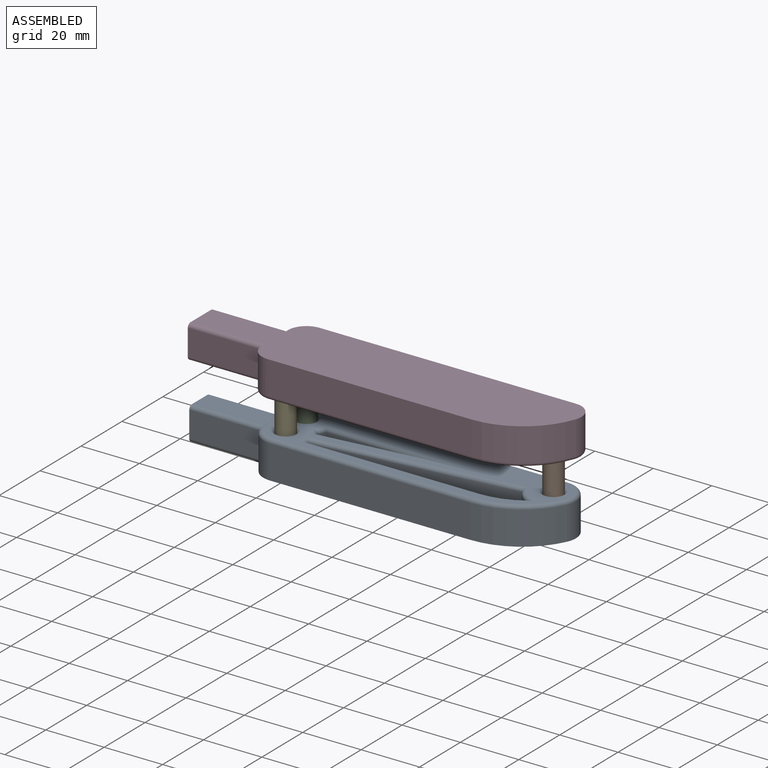
[diagram: assembled view]
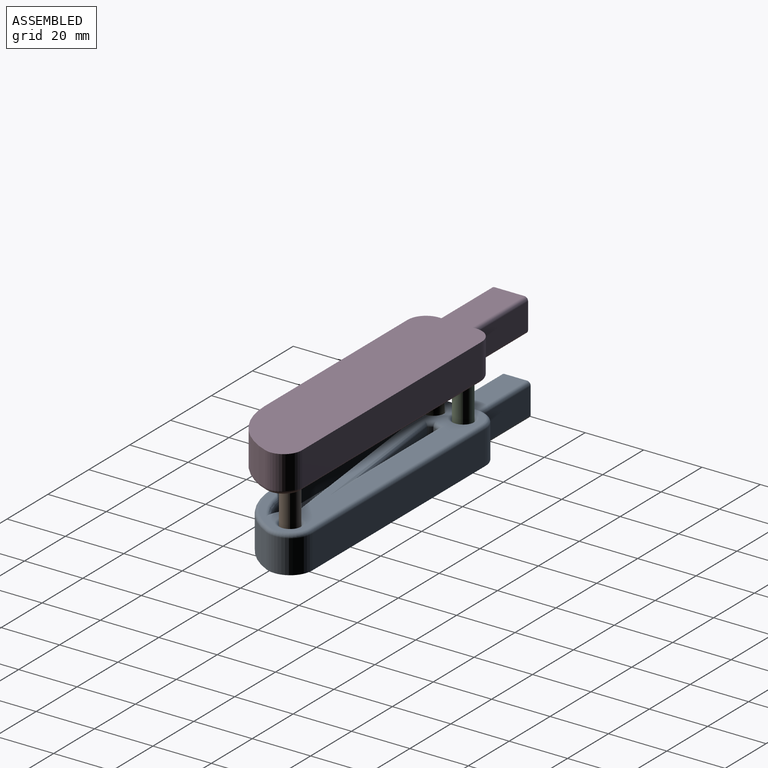
[diagram: assembled view, second angle]
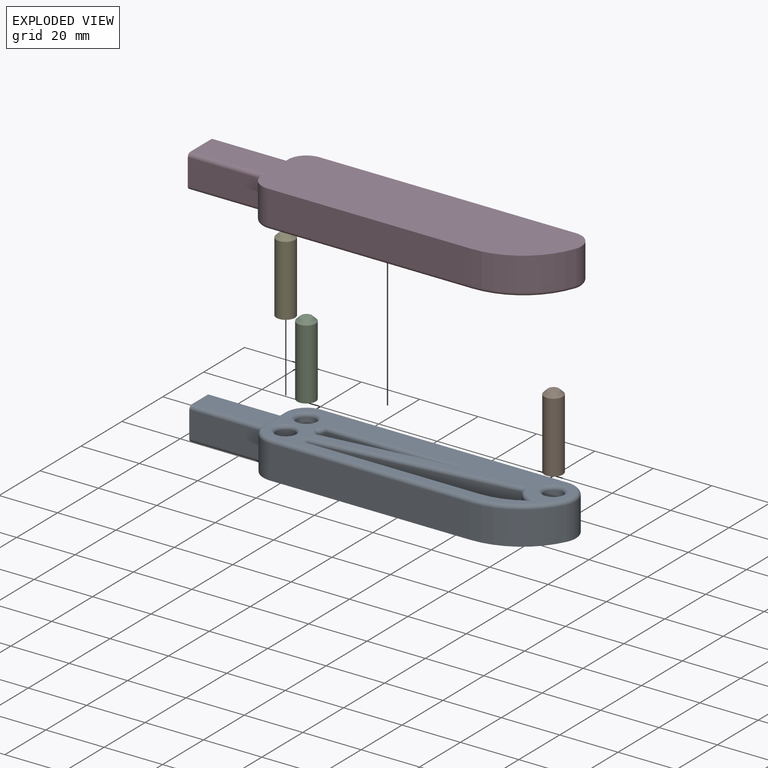
[diagram: exploded view]
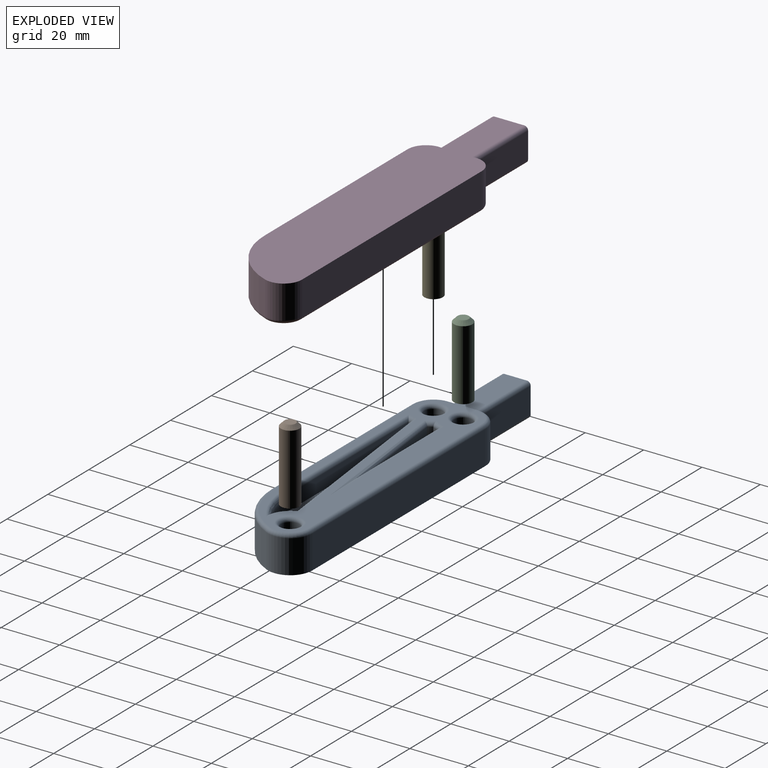
[diagram: exploded view, second angle]
ASSEMBLY  parts=5 mates=4
PART A: 52 faces, bbox 126.4x28.1x12.7 mm
  f0: plane 97.34x22.86mm, normal (0,0,1), area 1163.9mm2, adj f14,f15,f16,f28,f29,f30,f31,f32
  f1: cylinder r=7.62mm len=11.43mm, axis (0,0,-1), area 137.4mm2, adj f2,f7,f30,f32,f44,f48,f51
  f2: plane 68.58x11.43mm, normal (0,-1,0), area 783.9mm2, adj f1,f3,f7,f34
  f3: cylinder r=25.4mm len=22.95mm, axis (0,0,-1), area 327.4mm2, adj f2,f4,f7,f33
  f4: cylinder r=7.62mm len=11.43mm, axis (0,0,-1), area 175.4mm2, adj f3,f5,f7,f31
  f5: plane 84.64x11.43mm, normal (0,1,0), area 967.5mm2, adj f4,f6,f7,f29
  f6: cylinder r=7.62mm len=11.43mm, axis (0,0,-1), area 137.4mm2, adj f5,f7,f28,f30,f46,f49,f50
  f7: plane 125.28x25.4mm, normal (0,0,-1), area 2587.5mm2, adj f1,f2,f3,f4,f5,f6,f47,f50
  f8: cylinder r=3.17mm len=6.35mm, axis (0,0,1), area 101.3mm2, adj f9,f16
  f9: plane 6.35x6.35mm, normal (0,0,1), area 31.7mm2, adj f8
  f10: cylinder r=3.17mm len=6.35mm, axis (0,0,1), area 101.3mm2, adj f11,f15
  f11: plane 6.35x6.35mm, normal (0,0,1), area 31.7mm2, adj f10
  f12: cylinder r=3.17mm len=6.35mm, axis (0,0,1), area 101.3mm2, adj f13,f14
  f13: plane 6.35x6.35mm, normal (0,0,1), area 31.7mm2, adj f12
  f14: torus R=4.45mm, axis (0,0,1), area 45.6mm2, adj f0,f12
  f15: torus R=4.45mm, axis (0,0,1), area 45.6mm2, adj f0,f10
  f16: torus R=4.45mm, axis (0,0,1), area 45.6mm2, adj f0,f8
  f17: cylinder r=8.89mm len=5.08mm, axis (0,0,1), area 9mm2, adj f18,f20,f21,f41
  f18: plane 34.01x5.08mm, normal (-0.12,0.99,0), area 174mm2, adj f17,f19,f21,f43
  f19: plane 33.65x5.08mm, normal (0,-1,0), area 170.9mm2, adj f18,f20,f21,f42
  f20: cylinder r=8.89mm len=5.08mm, axis (0,0,1), area 14.4mm2, adj f17,f19,f21,f40
  f21: plane 34.87x4.08mm, normal (0,0,1), area 70.5mm2, adj f17,f18,f19,f20
  f22: cylinder r=8.89mm len=5.08mm, axis (0,0,1), area 5.5mm2, adj f23,f26,f27,f35
  f23: plane 60.06x5.08mm, normal (0,1,0), area 305.1mm2, adj f22,f24,f27,f36
  f24: cylinder r=24.13mm len=13.56mm, axis (0,0,1), area 73.1mm2, adj f23,f25,f27,f38
  f25: cylinder r=8.89mm len=5.66mm, axis (0,0,1), area 39.7mm2, adj f24,f26,f27,f39
  f26: plane 67.72x8.13mm, normal (0.12,-0.99,0), area 346.5mm2, adj f22,f25,f27,f37
  f27: plane 73.62x9.18mm, normal (0,0,1), area 361.9mm2, adj f22,f23,f24,f25,f26
  f28: torus R=6.35mm, axis (0,0,1), area 22.4mm2, adj f0,f6,f29,f30
  f29: cylinder r=1.27mm len=84.64mm, axis (1,0,0), area 168.9mm2, adj f0,f5,f28,f31
  f30: cylinder r=1.27mm len=10.16mm, axis (0,1,0), area 20.5mm2, adj f0,f1,f6,f28,f32,f45,f48,f49
  f31: torus R=6.35mm, axis (0,0,1), area 28.8mm2, adj f0,f4,f29,f33
  f32: torus R=6.35mm, axis (0,0,1), area 22.4mm2, adj f0,f1,f30,f34
  f33: torus R=24.13mm, axis (0,0,1), area 56.1mm2, adj f0,f3,f31,f34
  f34: cylinder r=1.27mm len=68.58mm, axis (-1,0,0), area 136.8mm2, adj f0,f2,f32,f33
  f35: torus R=7.62mm, axis (0,0,1), area 4mm2, adj f0,f22,f36,f37
  f36: cylinder r=1.27mm len=61.98mm, axis (-1,0,0), area 121.1mm2, adj f0,f23,f35,f38
  f37: cylinder r=1.27mm len=69.87mm, axis (0.99,0.12,0), area 137.5mm2, adj f0,f26,f35,f39
  f38: torus R=25.4mm, axis (0,0,1), area 31.5mm2, adj f0,f24,f36,f39
  f39: torus R=7.62mm, axis (0,0,1), area 17.5mm2, adj f0,f25,f37,f38
  f40: torus R=7.62mm, axis (0,0,1), area 6.7mm2, adj f0,f20,f41,f42
  f41: torus R=7.62mm, axis (0,0,1), area 4.7mm2, adj f0,f17,f40,f43
  f42: cylinder r=1.27mm len=55.89mm, axis (1,0,0), area 83.2mm2, adj f0,f19,f40,f43
  f43: cylinder r=1.27mm len=56.25mm, axis (-0.99,-0.12,0), area 84.4mm2, adj f0,f18,f41,f42
  f44: plane 25.4x8.89mm, normal (0,-1,0), area 225.8mm2, adj f1,f47,f48,f51
  f45: plane 25.4x7.62mm, normal (0,0,1), area 193.5mm2, adj f30,f47,f48,f49
  f46: plane 25.4x8.89mm, normal (0,1,0), area 225.8mm2, adj f6,f47,f49,f50
  f47: plane 11.43x10.16mm, normal (-1,0,0), area 114.7mm2, adj f7,f44,f45,f46,f48,f49,f50,f51
  f48: cylinder r=1.27mm len=25.42mm, axis (-1,0,0), area 50.7mm2, adj f1,f30,f44,f45,f47
  f49: cylinder r=1.27mm len=25.42mm, axis (1,0,0), area 50.7mm2, adj f6,f30,f45,f46,f47
  f50: cylinder r=1.27mm len=25.51mm, axis (1,0,0), area 50.8mm2, adj f6,f7,f46,f47
  f51: cylinder r=1.27mm len=25.51mm, axis (-1,0,0), area 50.8mm2, adj f1,f7,f44,f47
PART B: 4 faces, bbox 6.4x6.4x25.4 mm
  f0: cylinder r=3.17mm len=24.13mm, axis (0,0,-1), area 481.4mm2, adj f2,f3
  f1: plane 3.81x3.81mm, normal (0,0,1), area 11.4mm2, adj f3
  f2: plane 6.35x6.35mm, normal (0,0,-1), area 31.7mm2, adj f0
  f3: cone r=1.91mm half-angle=45deg, axis (0,0,-1), area 28.7mm2, adj f0,f1
PART C: same geometry as B
PART D: 52 faces, bbox 127.5x28x12.7 mm
  f0: plane 97.97x22.86mm, normal (0,0,1), area 956.5mm2, adj f14,f15,f16,f28,f29,f30,f31,f32
  f1: cylinder r=6.35mm len=11.43mm, axis (0,0,-1), area 114.6mm2, adj f2,f7,f30,f32,f44,f48,f51
  f2: plane 69.85x11.43mm, normal (0,1,0), area 798.4mm2, adj f1,f3,f7,f34
  f3: cylinder r=25.4mm len=23.95mm, axis (0,0,-1), area 357.4mm2, adj f2,f4,f7,f33
  f4: cylinder r=6.35mm len=11.43mm, axis (0,0,-1), area 138.7mm2, adj f3,f5,f7,f31
  f5: plane 87.81x11.43mm, normal (0,-1,0), area 1003.7mm2, adj f4,f6,f7,f29
  f6: cylinder r=6.35mm len=11.43mm, axis (0,0,-1), area 114.6mm2, adj f5,f7,f28,f30,f46,f49,f50
  f7: plane 125.91x25.4mm, normal (0,0,-1), area 2668.8mm2, adj f1,f2,f3,f4,f5,f6,f47,f50
  f8: cylinder r=3.17mm len=6.35mm, axis (0,0,1), area 101.3mm2, adj f9,f16
  f9: plane 6.35x6.35mm, normal (0,0,1), area 31.7mm2, adj f8
  f10: cylinder r=3.17mm len=6.35mm, axis (0,0,1), area 101.3mm2, adj f11,f15
  f11: plane 6.35x6.35mm, normal (0,0,1), area 31.7mm2, adj f10
  f12: cylinder r=3.17mm len=6.35mm, axis (0,0,1), area 101.3mm2, adj f13,f14
  f13: plane 6.35x6.35mm, normal (0,0,1), area 31.7mm2, adj f12
  f14: torus R=4.45mm, axis (0,0,1), area 45.6mm2, adj f0,f12
  f15: torus R=4.45mm, axis (0,0,1), area 45.6mm2, adj f0,f10
  f16: torus R=4.45mm, axis (0,0,1), area 45.6mm2, adj f0,f8
  f17: cylinder r=8.89mm len=5.08mm, axis (0,0,1), area 16.4mm2, adj f18,f20,f21,f41
  f18: plane 44.44x6.43mm, normal (-0.14,-0.99,0), area 228.1mm2, adj f17,f19,f21,f43
  f19: plane 43.98x5.08mm, normal (0,1,0), area 223.4mm2, adj f18,f20,f21,f42
  f20: cylinder r=8.89mm len=5.08mm, axis (0,0,1), area 22.8mm2, adj f17,f19,f21,f40
  f21: plane 46.28x6.43mm, normal (0,0,1), area 146.7mm2, adj f17,f18,f19,f20
  f22: cylinder r=8.89mm len=5.08mm, axis (0,0,1), area 6.6mm2, adj f23,f26,f27,f35
  f23: plane 61.33x5.08mm, normal (0,-1,0), area 311.6mm2, adj f22,f24,f27,f36
  f24: cylinder r=22.01mm len=15.75mm, axis (0,0,1), area 89.1mm2, adj f23,f25,f27,f38
  f25: cylinder r=8.89mm len=5.86mm, axis (0,0,1), area 40.1mm2, adj f24,f26,f27,f39
  f26: plane 70.93x10.26mm, normal (0.14,0.99,0), area 364.1mm2, adj f22,f25,f27,f37
  f27: plane 77.08x11.53mm, normal (0,0,1), area 470.7mm2, adj f22,f23,f24,f25,f26
  f28: torus R=5.08mm, axis (0,0,1), area 18.5mm2, adj f0,f6,f29,f30
  f29: cylinder r=1.27mm len=87.81mm, axis (1,0,0), area 175.2mm2, adj f0,f5,f28,f31
  f30: cylinder r=1.27mm len=12.7mm, axis (0,-1,0), area 25.6mm2, adj f0,f1,f6,f28,f32,f45,f48,f49
  f31: torus R=5.08mm, axis (0,0,1), area 22.4mm2, adj f0,f4,f29,f33
  f32: torus R=5.08mm, axis (0,0,1), area 18.5mm2, adj f0,f1,f30,f34
  f33: torus R=24.13mm, axis (0,0,1), area 61.2mm2, adj f0,f3,f31,f34
  f34: cylinder r=1.27mm len=69.85mm, axis (-1,0,0), area 139.3mm2, adj f0,f2,f32,f33
  f35: torus R=7.62mm, axis (0,0,1), area 4.4mm2, adj f0,f22,f36,f37
  f36: cylinder r=1.27mm len=63.25mm, axis (-1,0,0), area 123.7mm2, adj f0,f23,f35,f38
  f37: cylinder r=1.27mm len=73.11mm, axis (0.99,-0.14,0), area 144.4mm2, adj f0,f26,f35,f39
  f38: torus R=23.28mm, axis (0,0,1), area 37.5mm2, adj f0,f24,f36,f39
  f39: torus R=7.62mm, axis (0,0,1), area 17.2mm2, adj f0,f25,f37,f38
  f40: torus R=7.62mm, axis (0,0,1), area 10.2mm2, adj f0,f20,f41,f42
  f41: torus R=7.62mm, axis (0,0,1), area 7.8mm2, adj f0,f17,f40,f43
  f42: cylinder r=1.27mm len=62.64mm, axis (1,0,0), area 101.3mm2, adj f0,f19,f40,f43
  f43: cylinder r=1.27mm len=63.08mm, axis (-0.99,0.14,0), area 103.1mm2, adj f0,f18,f41,f42
  f44: plane 25.4x8.89mm, normal (0,1,0), area 225.8mm2, adj f1,f47,f48,f51
  f45: plane 25.4x10.16mm, normal (0,0,1), area 258.1mm2, adj f30,f47,f48,f49
  f46: plane 25.4x8.89mm, normal (0,-1,0), area 225.8mm2, adj f6,f47,f49,f50
  f47: plane 12.7x11.43mm, normal (-1,0,0), area 143.8mm2, adj f7,f44,f45,f46,f48,f49,f50,f51
  f48: cylinder r=1.27mm len=25.42mm, axis (-1,0,0), area 50.7mm2, adj f1,f30,f44,f45,f47
  f49: cylinder r=1.27mm len=25.42mm, axis (1,0,0), area 50.7mm2, adj f6,f30,f45,f46,f47
  f50: cylinder r=1.27mm len=25.53mm, axis (1,0,0), area 50.7mm2, adj f6,f7,f46,f47
  f51: cylinder r=1.27mm len=25.53mm, axis (-1,0,0), area 50.7mm2, adj f1,f7,f44,f47
PART E: same geometry as B
PLACE A t=(12.34,-62.3,-37.04)mm
PLACE B t=(53.7,-25.41,-30.69)mm
PLACE C t=(-30.95,-25.41,-30.69)mm
PLACE D rot(axis=(1,0,0),180deg) t=(13.61,-63.57,1.06)mm
PLACE E t=(-30.95,-35.57,-30.69)mm
MATE fastened E.f0 <-> A.f1  axis (0,0,-1) through (-30.95,-35.57,-30.69)mm
MATE fastened C.f0 <-> A.f6  axis (0,0,-1) through (-30.95,-25.41,-30.69)mm
MATE fastened D.f6 <-> C.f0  axis (0,0,-1) through (-30.95,-25.41,-5.29)mm
MATE fastened B.f0 <-> A.f4  axis (0,0,-1) through (53.7,-25.41,-30.69)mm
